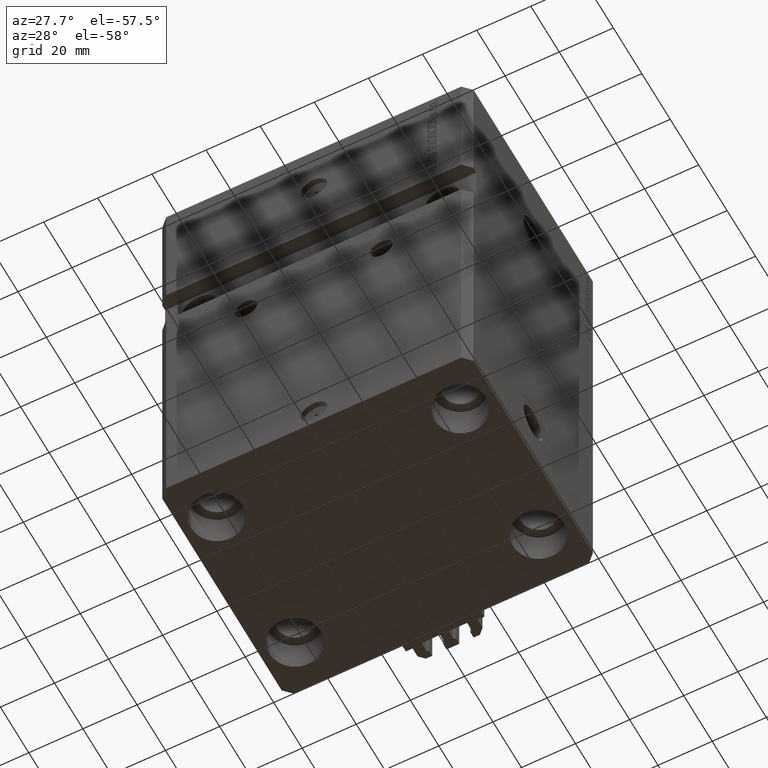
[diagram: clean part render]
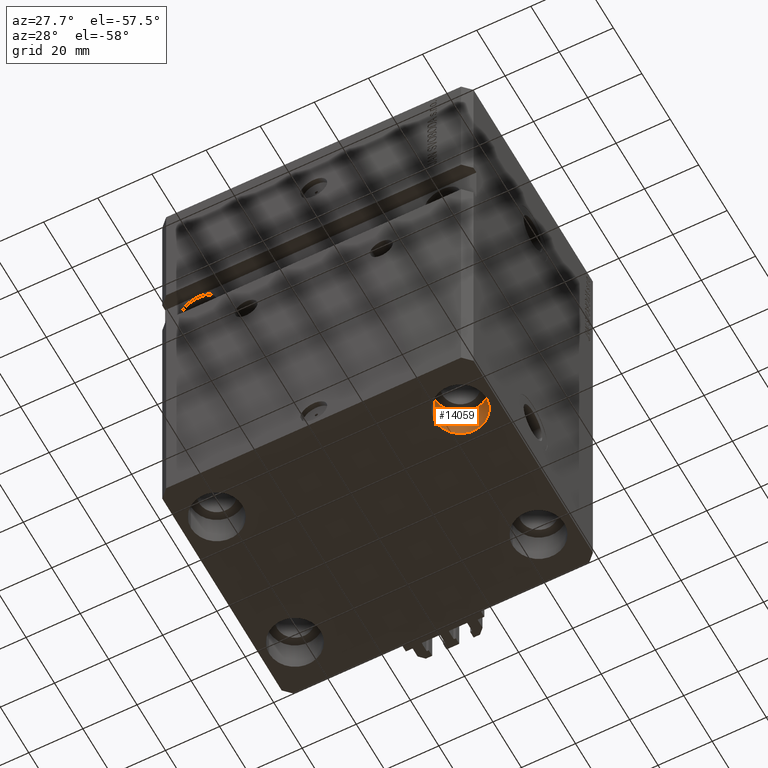
[diagram: same view with one face highlighted and labeled with its STEP entity id]
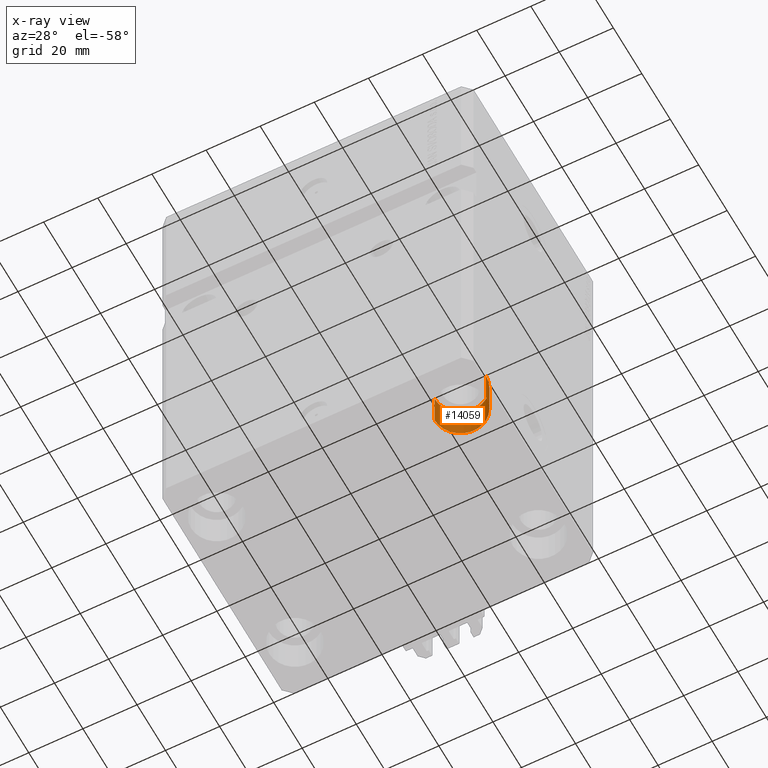
[diagram: x-ray of the same camera — body ghosted, the highlighted face saturated]
A machine part, auxiliary view. The second image highlights one B-rep face of the part: STEP entity #14059.
The next image is the same camera in x-ray: the body ghosted, the highlighted face saturated — about 0% of this face is hidden behind the body in this view.
In plain terms, the highlighted cylindrical surface (edge-blend (fillet) strip) has radius 9.5 mm, axis along (-0, -0, -1).
Its self-contained STEP definition (entity closure, byte-faithful):
#1254 = DIRECTION ( 'NONE',  ( -0.000000000000000000, -0.000000000000000000, 1.000000000000000000 ) ) ;
#1520 = AXIS2_PLACEMENT_3D ( 'NONE', #8641, #23982, #4608 ) ;
#1660 = DIRECTION ( 'NONE',  ( -0.000000000000000000, -0.000000000000000000, -1.000000000000000000 ) ) ;
#4608 = DIRECTION ( 'NONE',  ( 1.000000000000000000, 0.000000000000000000, 0.000000000000000000 ) ) ;
#5793 = FACE_OUTER_BOUND ( 'NONE', #15112, .T. ) ;
#8641 = CARTESIAN_POINT ( 'NONE',  ( 45.00000000000000000, -27.49999999999999645, -152.0000000000000000 ) ) ;
#8653 = VERTEX_POINT ( 'NONE', #19643 ) ;
#10320 = EDGE_CURVE ( 'NONE', #38704, #40608, #40388, .T. ) ;
#13981 = EDGE_CURVE ( 'NONE', #8653, #44027, #34486, .T. ) ;
#14059 = ADVANCED_FACE ( 'NONE', ( #5793 ), #28453, .F. ) ;
#15112 = EDGE_LOOP ( 'NONE', ( #33211, #49555, #46990, #48523 ) ) ;
#15371 = CARTESIAN_POINT ( 'NONE',  ( 54.50000000000000000, -27.49999999999999645, -152.0000000000000000 ) ) ;
#17011 = VECTOR ( 'NONE', #30731, 1000.000000000000000 ) ;
#17844 = CARTESIAN_POINT ( 'NONE',  ( 45.00000000000000000, -27.49999999999999645, -152.0000000000000000 ) ) ;
#18636 = VECTOR ( 'NONE', #1660, 1000.000000000000000 ) ;
#19643 = CARTESIAN_POINT ( 'NONE',  ( 54.50000000000000000, -27.49999999999999645, -152.0000000000000000 ) ) ;
#21614 = DIRECTION ( 'NONE',  ( -0.000000000000000000, -0.000000000000000000, -1.000000000000000000 ) ) ;
#21903 = CIRCLE ( 'NONE', #30754, 9.500000000000001776 ) ;
#23431 = AXIS2_PLACEMENT_3D ( 'NONE', #17844, #21614, #32946 ) ;
#23982 = DIRECTION ( 'NONE',  ( -0.000000000000000000, -0.000000000000000000, 1.000000000000000000 ) ) ;
#28453 = CYLINDRICAL_SURFACE ( 'NONE', #23431, 9.500000000000001776 ) ;
#28678 = EDGE_CURVE ( 'NONE', #8653, #38704, #34442, .T. ) ;
#30731 = DIRECTION ( 'NONE',  ( -0.000000000000000000, -0.000000000000000000, -1.000000000000000000 ) ) ;
#30754 = AXIS2_PLACEMENT_3D ( 'NONE', #48266, #1254, #47790 ) ;
#32848 = CARTESIAN_POINT ( 'NONE',  ( 54.50000000000000000, -27.49999999999999645, -165.0000000000000000 ) ) ;
#32946 = DIRECTION ( 'NONE',  ( -1.000000000000000000, 0.000000000000000000, 0.000000000000000000 ) ) ;
#33211 = ORIENTED_EDGE ( 'NONE', *, *, #13981, .F. ) ;
#34442 = CIRCLE ( 'NONE', #1520, 9.500000000000001776 ) ;
#34486 = LINE ( 'NONE', #15371, #17011 ) ;
#36726 = CARTESIAN_POINT ( 'NONE',  ( 35.50000000000000000, -27.49999999999999645, -152.0000000000000000 ) ) ;
#38704 = VERTEX_POINT ( 'NONE', #36726 ) ;
#40388 = LINE ( 'NONE', #44162, #18636 ) ;
#40608 = VERTEX_POINT ( 'NONE', #45593 ) ;
#41494 = EDGE_CURVE ( 'NONE', #44027, #40608, #21903, .T. ) ;
#44027 = VERTEX_POINT ( 'NONE', #32848 ) ;
#44162 = CARTESIAN_POINT ( 'NONE',  ( 35.50000000000000000, -27.49999999999999645, -152.0000000000000000 ) ) ;
#45593 = CARTESIAN_POINT ( 'NONE',  ( 35.50000000000000000, -27.49999999999999645, -165.0000000000000000 ) ) ;
#46990 = ORIENTED_EDGE ( 'NONE', *, *, #10320, .T. ) ;
#47790 = DIRECTION ( 'NONE',  ( 1.000000000000000000, 0.000000000000000000, 0.000000000000000000 ) ) ;
#48266 = CARTESIAN_POINT ( 'NONE',  ( 45.00000000000000000, -27.49999999999999645, -165.0000000000000000 ) ) ;
#48523 = ORIENTED_EDGE ( 'NONE', *, *, #41494, .F. ) ;
#49555 = ORIENTED_EDGE ( 'NONE', *, *, #28678, .T. ) ;